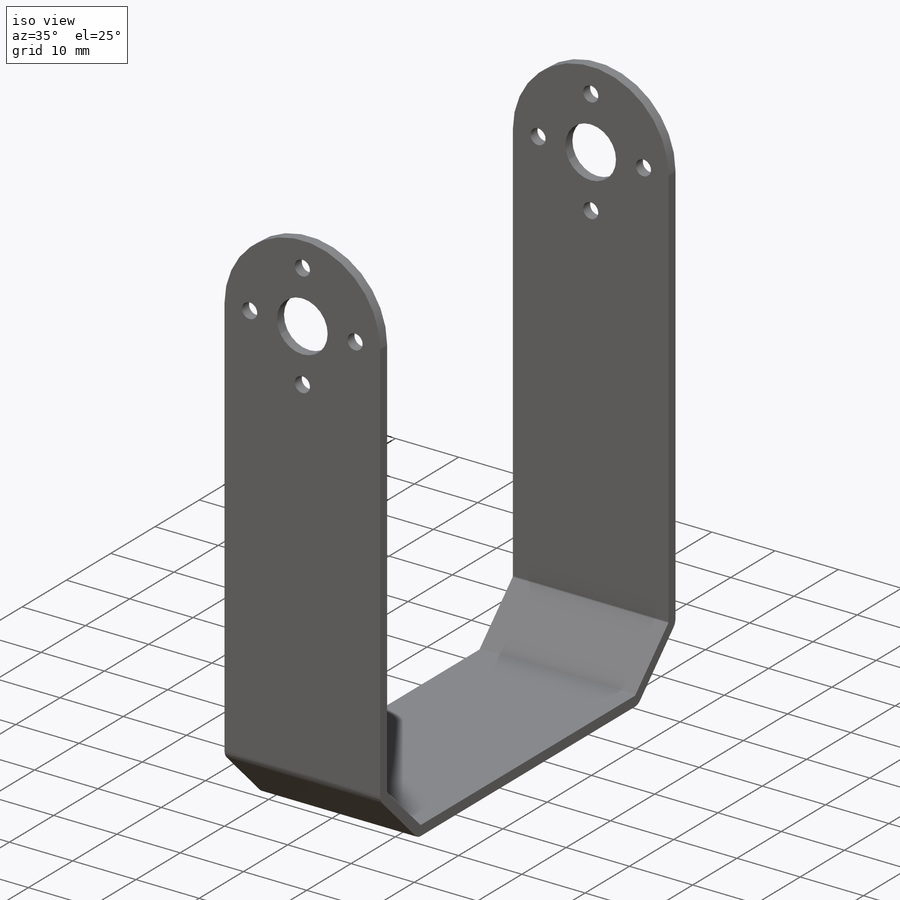
[diagram: iso view]
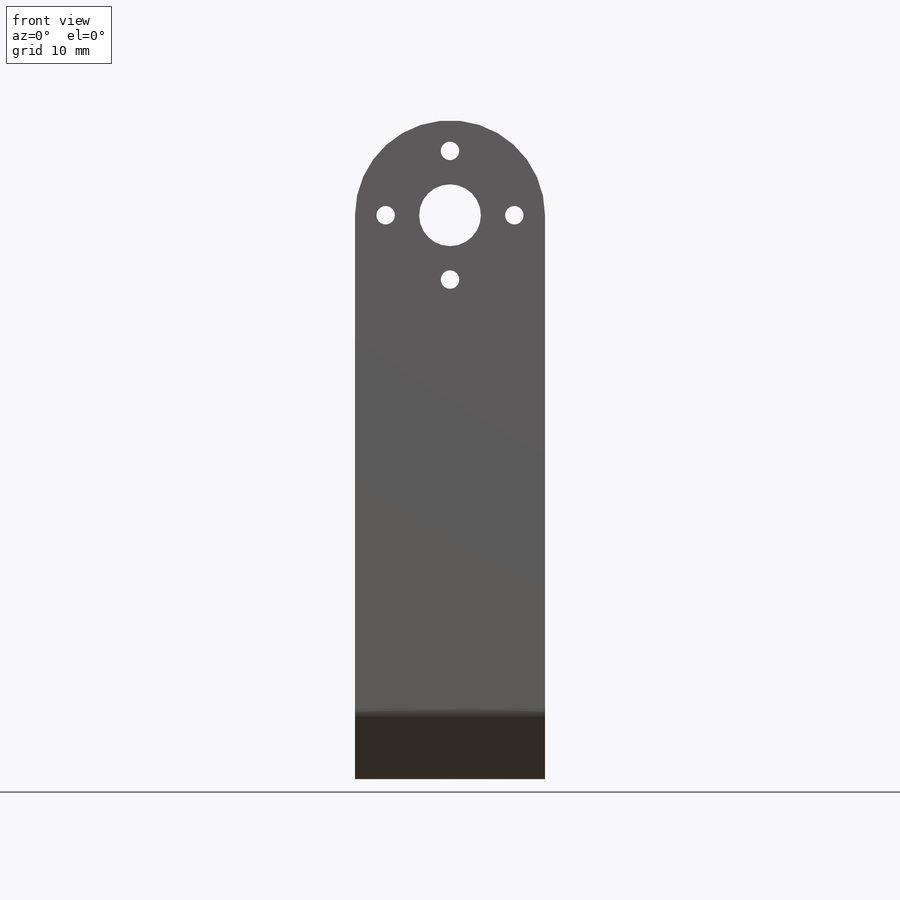
[diagram: front view]
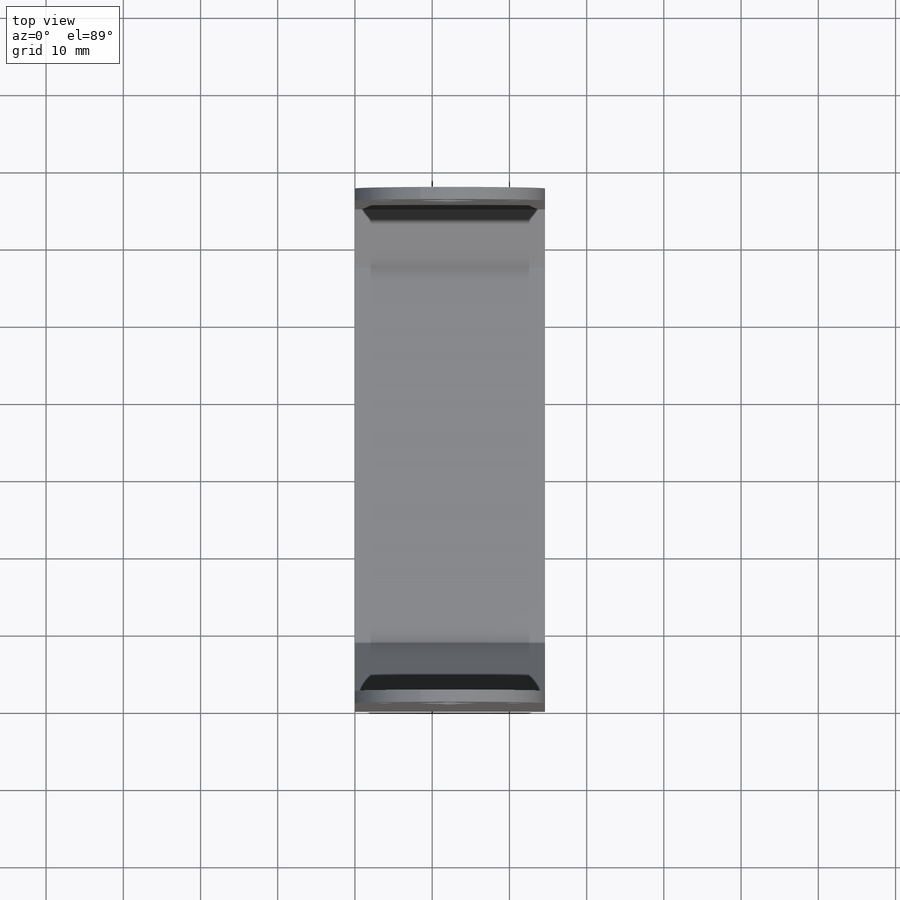
[diagram: top view]
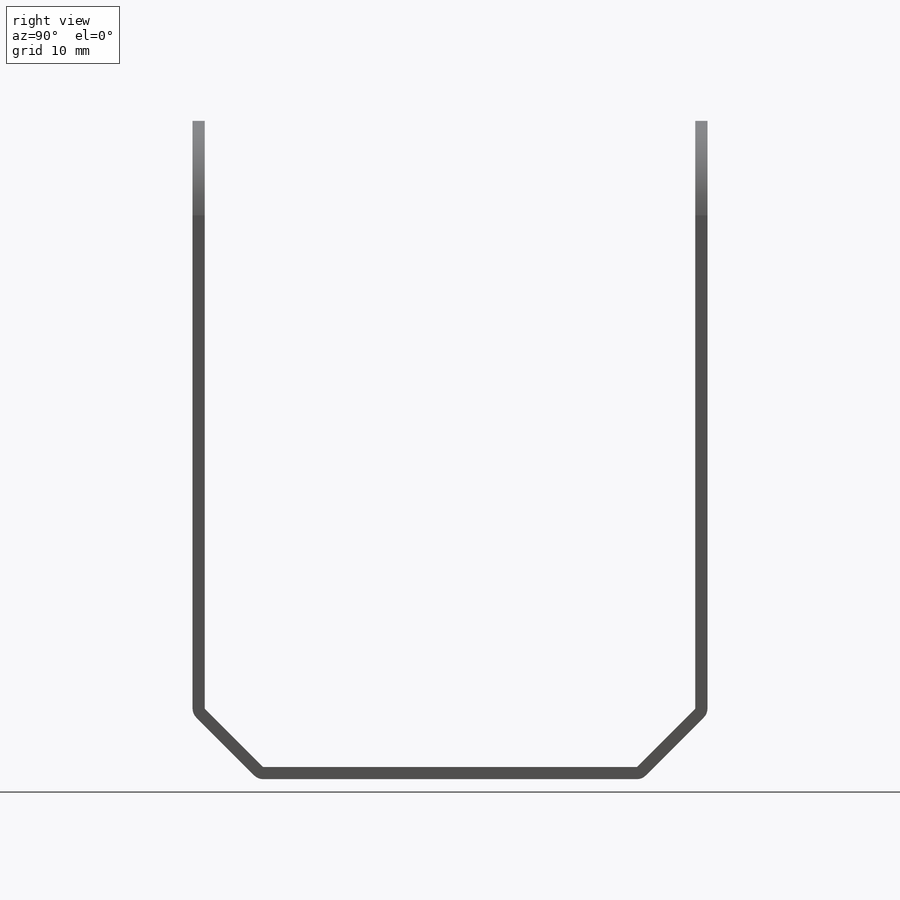
[diagram: right view]
SOLIDWORKS PART (.sldprt)
format: sldprt  version: not decoded by parser v0  size: 233,984 bytes
history: native  units: mm
features: sketch x4, cut_extrude x3, fillet x2, material x1, extrude x1 (+16 scaffold rows collapsed)
feature tree (27):
  scaffold x16  (default folders/planes/origin — collapsed)
  material  "Material <not specified>"
  sketch  "Sketch2"  dims[D1=66.675mm D2=85.3186mm]
  extrude  "Extrude1"  Depth=24.6126mm
  sketch  "Sketch3"  dims[D1=1.5748mm D2=1.5748mm D3=1.5748mm D4=9.1186mm D5=9.1186mm D6=9.1186mm D7=9.1186mm D8=1.5748mm D9=1.5748mm]
  cut_extrude  "Extrude2"  Depth=24.6126mm
  sketch  "Sketch4"
  cut_extrude  "Extrude3"  [1 undecoded]
  fillet  "Fillet1"  Radius=1.5875mm
  fillet  "Fillet2"  Radius=0.254mm
  sketch  "Sketch5"  dims[D1=8.001mm D3=~2.081319mm D2=73.025mm]
  cut_extrude  "Extrude4"  [1 undecoded]
decode coverage: 7 of 10 modeling features carry decoded parameters
note: ~ marks probable driven/reference dimensions
note: 2 parameter values undecoded
note: suppression state not decoded; provenance and decode notes live in map.json
